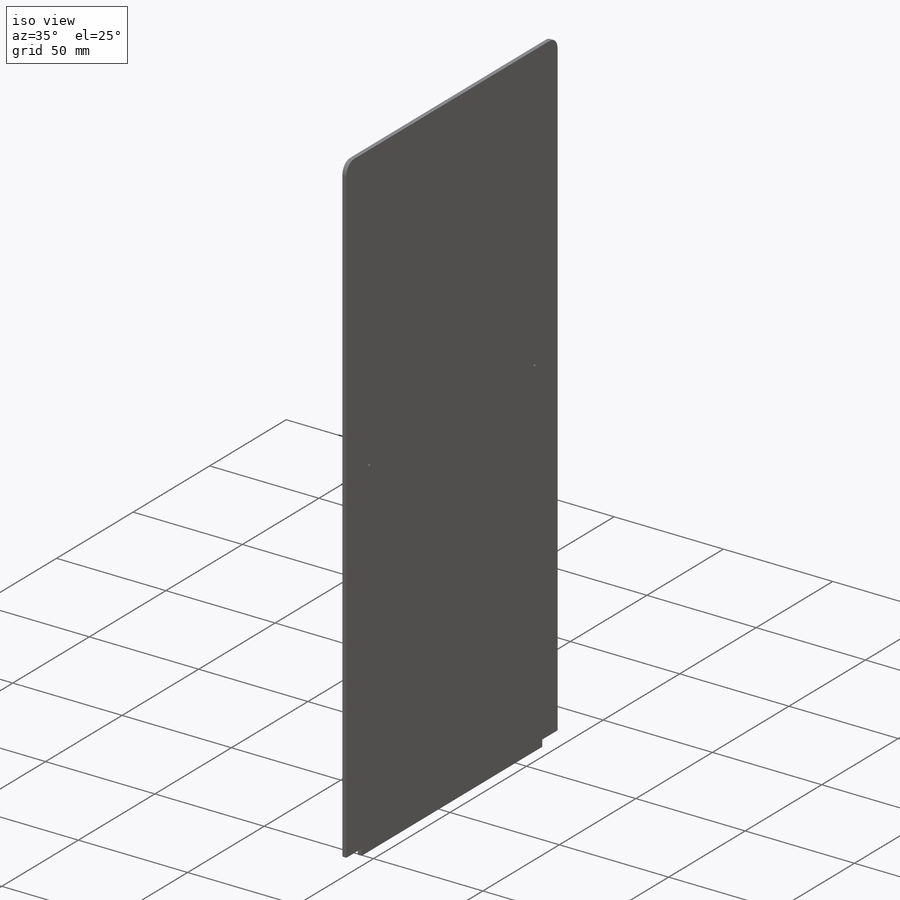
[diagram: iso view]
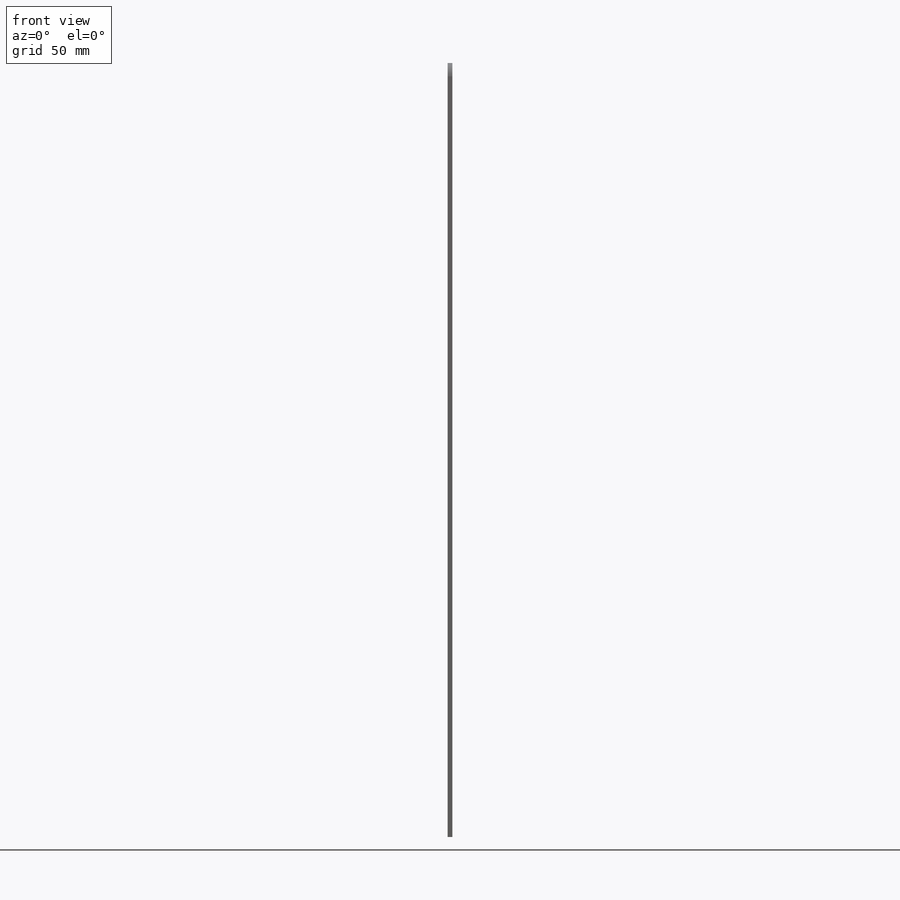
[diagram: front view]
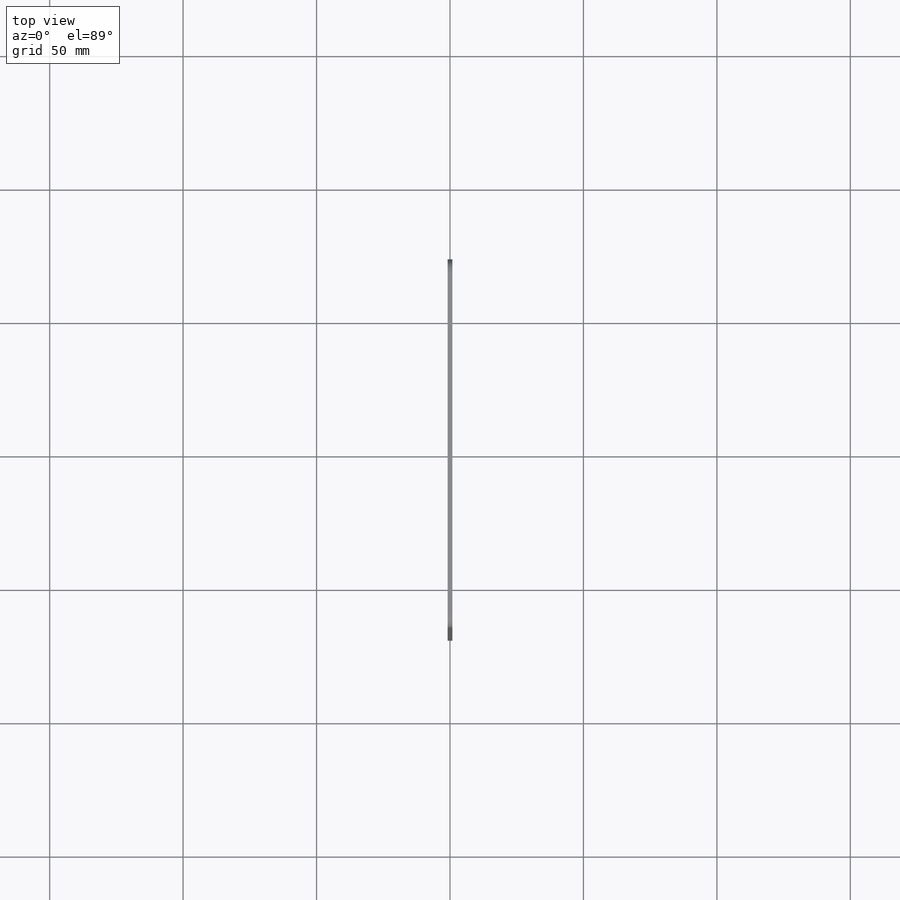
[diagram: top view]
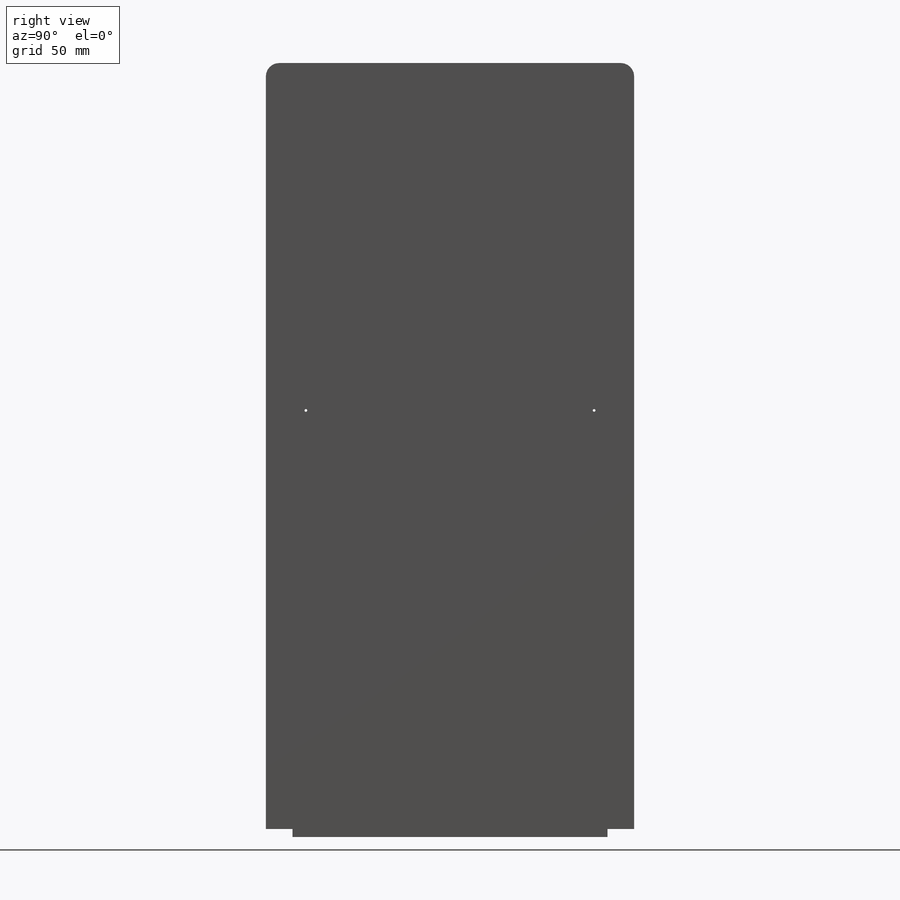
[diagram: right view]
SOLIDWORKS PART (.sldprt)
format: sldprt  version: not decoded by parser v0  size: 169,984 bytes
history: native  units: mm
features: sketch x7, fillet x3, cut_extrude x2, material x1, extrude x1, plane x1 (+11 scaffold rows collapsed)
feature tree (26):
  scaffold x11  (default folders/planes/origin — collapsed)
  material  "Material <not specified>"
  sketch  "Sketch1"  dims[D1=138.0mm D2=290.0mm D3=3.0mm]
  extrude  "Boss-Extrude1"  Depth=1.8mm
  sketch  "Sketch2"  dims[D1=118.0mm]
  cut_extrude  "Cut-Extrude1"  Depth=3mm
  sketch  "Sketch3"  dims[D1=65.0mm]
  sketch  "Sketch4"  dims[D1=1.0mm D2=15.0mm D3=15.0mm D4=50.0mm]
  cut_extrude  "Cut-Extrude2"  Depth=10mm
  fillet  "Fillet1"  Radius=5mm
  sketch  "Sketch5"  dims[D1=~159.839121mm]
  fillet  "Axis2"  [1 undecoded]
  sketch  "Sketch6"
  plane  "Plane1"  Offset=0.9mm
  sketch  "Sketch7"
  fillet  "Axis3"  [1 undecoded]
decode coverage: 9 of 13 modeling features carry decoded parameters
note: ~ marks probable driven/reference dimensions
note: 2 parameter values undecoded
note: suppression state not decoded; provenance and decode notes live in map.json
